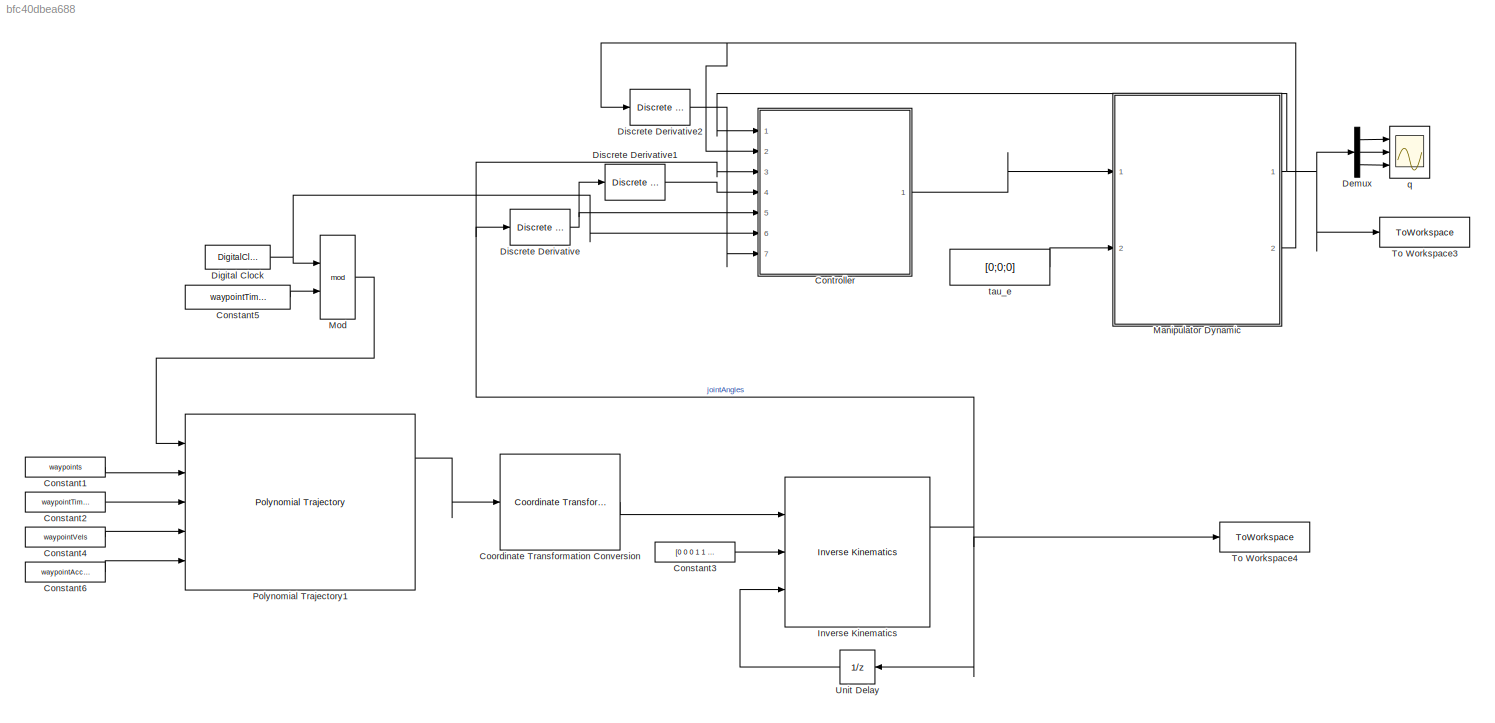
MODEL slx_bfc40dbea688
KIND model
CONFIG AbsTol = auto
CONFIG EnableMultiTasking = off
CONFIG FixedStep = dt
CONFIG MaxStep = auto
CONFIG MinStep = auto
CONFIG RelTol = 1e-3
CONFIG SampleTimeConstraint = Unconstrained
CONFIG SolverName = FixedStepAuto
CONFIG StartTime = 0.0
CONFIG StopTime = t_final
BLOCK [Constant] Constant1
  SampleTime = -1
  Value = waypoints
  VectorParams1D = off
BLOCK [Constant] Constant2
  SampleTime = -1
  Value = waypointTimes'
  VectorParams1D = off
BLOCK [Constant] Constant3
  Value = [0 0 0 1 1 1]
  VectorParams1D = off
BLOCK [Constant] Constant4
  SampleTime = -1
  Value = waypointVels
  VectorParams1D = off
BLOCK [Constant] Constant5
  Value = waypointTimes(end)
BLOCK [Constant] Constant6
  SampleTime = -1
  Value = waypointAccels
  VectorParams1D = off
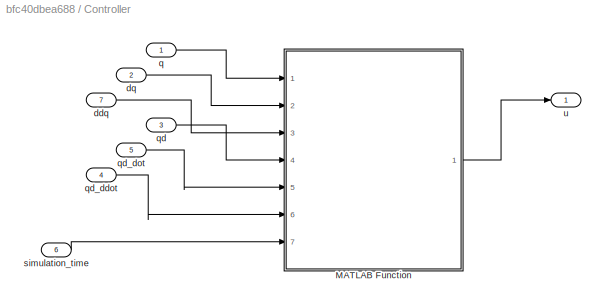
BLOCK [SubSystem] Controller
  Ports = [7, 1]
  RequestExecContextInheritance = off
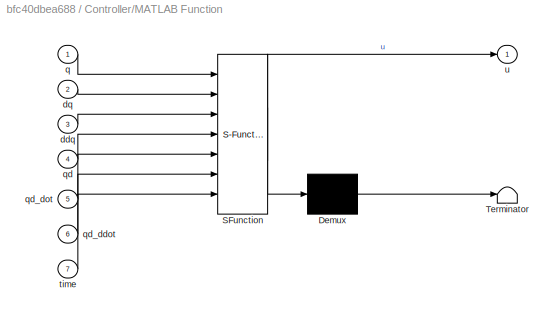
BLOCK [SubSystem] Controller/MATLAB Function
  ErrorFcn = Stateflow.Translate.translate
  PermitHierarchicalResolution = ExplicitOnly
  Ports = [7, 1]
  RequestExecContextInheritance = off
  SFBlockType = MATLAB Function
  TreatAsAtomicUnit = on
BLOCK [Demux] Controller/MATLAB Function/ Demux 
  Outputs = 1
  Ports = [1, 1]
BLOCK [S-Function] Controller/MATLAB Function/ SFunction 
  EnableBusSupport = on
  FunctionName = sf_sfun
  PortCounts = [7 2]
  Ports = [7, 2]
  SFcnIsStateOwnerBlock = off
  SFunctionDeploymentMode = off
  Tag = Stateflow S-Function 1
BLOCK [Terminator] Controller/MATLAB Function/ Terminator 
BLOCK [Inport] Controller/MATLAB Function/ddq
  Port = 3
BLOCK [Inport] Controller/MATLAB Function/dq
  Port = 2
BLOCK [Inport] Controller/MATLAB Function/q
BLOCK [Inport] Controller/MATLAB Function/qd
  Port = 4
BLOCK [Inport] Controller/MATLAB Function/qd_ddot
  Port = 6
BLOCK [Inport] Controller/MATLAB Function/qd_dot
  Port = 5
BLOCK [Inport] Controller/MATLAB Function/time
  Port = 7
BLOCK [Outport] Controller/MATLAB Function/u
BLOCK [Inport] Controller/ddq
  Port = 7
BLOCK [Inport] Controller/dq
  Port = 2
BLOCK [Inport] Controller/q
BLOCK [Inport] Controller/qd
  Port = 3
BLOCK [Inport] Controller/qd_ddot
  Port = 4
BLOCK [Inport] Controller/qd_dot
  Port = 5
BLOCK [Inport] Controller/simulation_time
  Port = 6
BLOCK [Outport] Controller/u
BLOCK [Reference] Coordinate Transformation Conversion  REF=robotcorelib/Coordinate Transformation Conversion
  Ports = [1, 1]
  SourceBlock = robotcorelib/Coordinate Transformation Conversion
  SourceProductBaseCode = NV,RO,RR,UV
  SourceType = robotics.slcore.internal.block.CoordinateTransformationConversion
BLOCK [Demux] Demux
  Outputs = 3
  Ports = [1, 3]
BLOCK [DigitalClock] Digital Clock
  SampleTime = dt
BLOCK [Reference] Discrete Derivative  REF=simulink/Discrete/Discrete Derivative
  Ports = [1, 1]
  SourceBlock = simulink/Discrete/Discrete Derivative
  SourceProductBaseCode = SL
  SourceType = Discrete Derivative
BLOCK [Reference] Discrete Derivative1  REF=simulink/Discrete/Discrete Derivative
  Ports = [1, 1]
  SourceBlock = simulink/Discrete/Discrete Derivative
  SourceProductBaseCode = SL
  SourceType = Discrete Derivative
BLOCK [Reference] Discrete Derivative2  REF=simulink/Discrete/Discrete Derivative
  Ports = [1, 1]
  SourceBlock = simulink/Discrete/Discrete Derivative
  SourceProductBaseCode = SL
  SourceType = Discrete Derivative
BLOCK [Reference] Inverse Kinematics  REF=robotmaniplib/Inverse Kinematics
  Ports = [3, 2]
  SourceBlock = robotmaniplib/Inverse Kinematics
  SourceProductBaseCode = RO
  SourceType = Inverse Kinematics
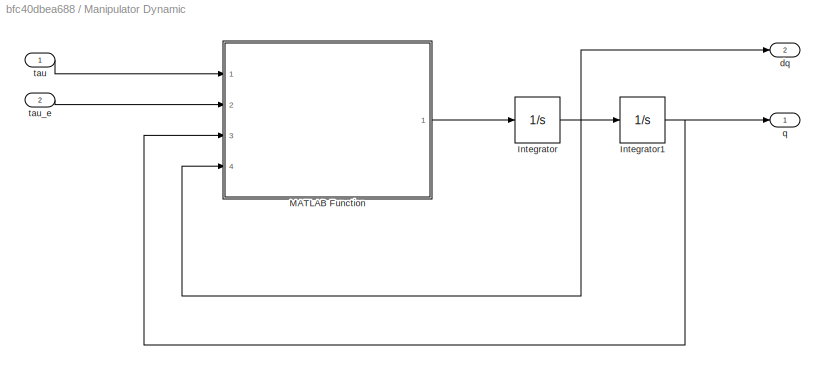
BLOCK [SubSystem] Manipulator Dynamic
  Ports = [2, 2]
  RequestExecContextInheritance = off
BLOCK [Integrator] Manipulator Dynamic/Integrator
  InitialCondition = dq_0
  Ports = [1, 1]
BLOCK [Integrator] Manipulator Dynamic/Integrator1
  InitialCondition = q_0
  Ports = [1, 1]
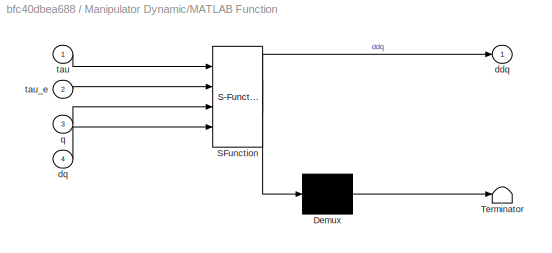
BLOCK [SubSystem] Manipulator Dynamic/MATLAB Function
  ErrorFcn = Stateflow.Translate.translate
  PermitHierarchicalResolution = ExplicitOnly
  Ports = [4, 1]
  RequestExecContextInheritance = off
  SFBlockType = MATLAB Function
  TreatAsAtomicUnit = on
BLOCK [Demux] Manipulator Dynamic/MATLAB Function/ Demux 
  Outputs = 1
  Ports = [1, 1]
BLOCK [S-Function] Manipulator Dynamic/MATLAB Function/ SFunction 
  EnableBusSupport = on
  FunctionName = sf_sfun
  PortCounts = [4 2]
  Ports = [4, 2]
  SFcnIsStateOwnerBlock = off
  SFunctionDeploymentMode = off
  Tag = Stateflow S-Function 2
BLOCK [Terminator] Manipulator Dynamic/MATLAB Function/ Terminator 
BLOCK [Outport] Manipulator Dynamic/MATLAB Function/ddq
BLOCK [Inport] Manipulator Dynamic/MATLAB Function/dq
  Port = 4
BLOCK [Inport] Manipulator Dynamic/MATLAB Function/q
  Port = 3
BLOCK [Inport] Manipulator Dynamic/MATLAB Function/tau
BLOCK [Inport] Manipulator Dynamic/MATLAB Function/tau_e
  Port = 2
BLOCK [Outport] Manipulator Dynamic/dq
  Port = 2
BLOCK [Outport] Manipulator Dynamic/q
BLOCK [Inport] Manipulator Dynamic/tau
BLOCK [Inport] Manipulator Dynamic/tau_e
  Port = 2
BLOCK [Math] Mod
  Operator = mod
  Ports = [2, 1]
  SignedPower = on
BLOCK [Reference] Polynomial Trajectory1  REF=robotcorelib/Polynomial Trajectory
  Ports = [5, 3]
  SourceBlock = robotcorelib/Polynomial Trajectory
  SourceProductBaseCode = NV,RO,RR,UV
  SourceType = robotics.slcore.internal.block.PolyTrajSys
BLOCK [ToWorkspace] To Workspace3
  FixptAsFi = on
  MaxDataPoints = inf
  Ports = [1]
  SampleTime = -1
  SaveFormat = Timeseries
  VariableName = configReal
BLOCK [ToWorkspace] To Workspace4
  FixptAsFi = on
  MaxDataPoints = inf
  Ports = [1]
  SampleTime = -1
  SaveFormat = Timeseries
  VariableName = configDes
BLOCK [UnitDelay] Unit Delay
  HasFrameUpgradeWarning = on
  InitialCondition = ikInitGuessSim
  SampleTime = -1
BLOCK [Scope] q
  Floating = off
  NumInputPorts = 3
  Ports = [3]
  ScopeSpecificationString = Simulink.scopes.TimeScopeBlockCfg('CurrentConfiguration', extmgr.ConfigurationSet(extmgr.Configuration('Core','General UI',true),extmgr.Configuration('Core','Source UI',true),extmgr.Configuration('Sources','WiredSimulink',true),extmgr.Configuration('Visuals','Time Domain',true,'SerializedDisplays',{struct('MinYLimReal','-1.3771','MaxYLimReal','3.15303','YLabelReal','','MinYLimMag','0.00000','MaxYL...<+1418ch>
BLOCK [Constant] tau_e
  Value = [0;0;0]
LINE Constant1:1 -> Polynomial Trajectory1:2
LINE Constant2:1 -> Polynomial Trajectory1:3
LINE Constant3:1 -> Inverse Kinematics:2
LINE Constant4:1 -> Polynomial Trajectory1:4
LINE Constant5:1 -> Mod:2
LINE Constant6:1 -> Polynomial Trajectory1:5
LINE Controller/MATLAB Function:1 -> Controller/u:1
LINE Controller/ddq:1 -> Controller/MATLAB Function:3
LINE Controller/dq:1 -> Controller/MATLAB Function:2
LINE Controller/q:1 -> Controller/MATLAB Function:1
LINE Controller/qd:1 -> Controller/MATLAB Function:4
LINE Controller/qd_ddot:1 -> Controller/MATLAB Function:6
LINE Controller/qd_dot:1 -> Controller/MATLAB Function:5
LINE Controller/simulation_time:1 -> Controller/MATLAB Function:7
LINE Controller:1 -> Manipulator Dynamic:1
LINE Coordinate Transformation Conversion:1 -> Inverse Kinematics:1
LINE Demux:1 -> q:1
LINE Demux:2 -> q:2
LINE Demux:3 -> q:3
NET Digital Clock:1 -> Controller:6, Mod:1
LINE Discrete Derivative1:1 -> Controller:4
LINE Discrete Derivative2:1 -> Controller:7
NET Discrete Derivative:1 -> Controller:5, Discrete Derivative1:1
NET Inverse Kinematics:1 -> Controller:3, Discrete Derivative:1, To Workspace4:1, Unit Delay:1
NET Manipulator Dynamic/Integrator1:1 -> Manipulator Dynamic/MATLAB Function:3, Manipulator Dynamic/q:1
NET Manipulator Dynamic/Integrator:1 -> Manipulator Dynamic/Integrator1:1, Manipulator Dynamic/MATLAB Function:4, Manipulator Dynamic/dq:1
LINE Manipulator Dynamic/MATLAB Function:1 -> Manipulator Dynamic/Integrator:1
LINE Manipulator Dynamic/tau:1 -> Manipulator Dynamic/MATLAB Function:1
LINE Manipulator Dynamic/tau_e:1 -> Manipulator Dynamic/MATLAB Function:2
NET Manipulator Dynamic:1 -> Controller:1, Demux:1, To Workspace3:1
NET Manipulator Dynamic:2 -> Controller:2, Discrete Derivative2:1
LINE Mod:1 -> Polynomial Trajectory1:1
LINE Polynomial Trajectory1:1 -> Coordinate Transformation Conversion:1
LINE Unit Delay:1 -> Inverse Kinematics:3
LINE tau_e:1 -> Manipulator Dynamic:2
note: NET lines group one-source signal fan-out (src -> all destinations, sorted); 1:1 wires keep LINE
CHART Controller/MATLAB Function states=1 transitions=1
  STATE_LABEL 'eML_blk_kernel()'
  STATE_LABEL 'SCRIPT:\nfunction u  = fcn(q, dq, ddq, qd, qd_dot, qd_ddot,time)\n% PD + gravity compensation controller function\n\n%% reset first qd_ddot\nif (time < 0.003)\n    qd_ddot = [0;0;0];\n    qd_dot = [0;0;0];\n    ddq = [0;0;0];\nend\n\nl1 = 0.6731;\nl2 = 0.432;\nl3 = 0.434;\nlc2 = 0.216;\nlc3 = 0.164;\nm2_hat = 15.46;\nm3_hat = 9.55;\nJ_hat = 0.302;\n\n%% Joint Space variables\n\nq1 = q(1);\nq2 = q(2);\nq3 = q(3);\n\ndq1 = d...<+1464ch>'
CHART Manipulator Dynamic/MATLAB Function states=1 transitions=1
  STATE_LABEL 'eML_blk_kernel()'
  STATE_LABEL 'SCRIPT:\nfunction ddq = DynamicModel( tau, tau_e, q, dq)\n%%%%%\n% 3-DOF Puma-560 Dynamic Model Function\n% H(q)* ddq + C(q) * dq + G = tau + tau_e\n% q is 3*1 vector of joint variables (radian)\n% H(q) is the inertia matrix\n% C(q) is the matrix of Coriolis and centrifugal forces\n% G(q) is  the vector of potential forces Parameters\n% tau is control torque \n% tau_e is the external torque due to the inter...<+1400ch>'
CHART  states=0 transitions=0
CHART  states=0 transitions=0
